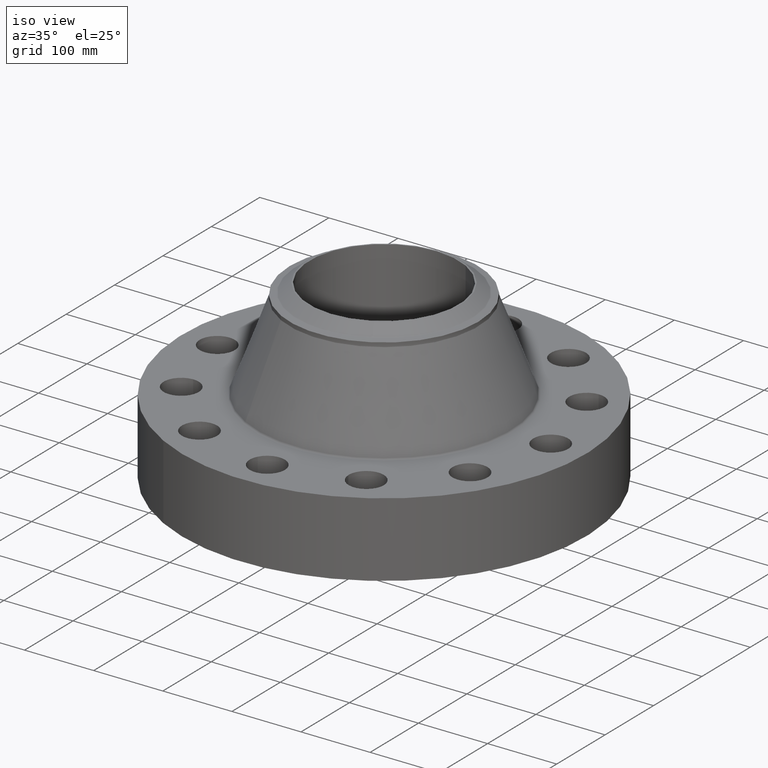
[diagram: clean part render]
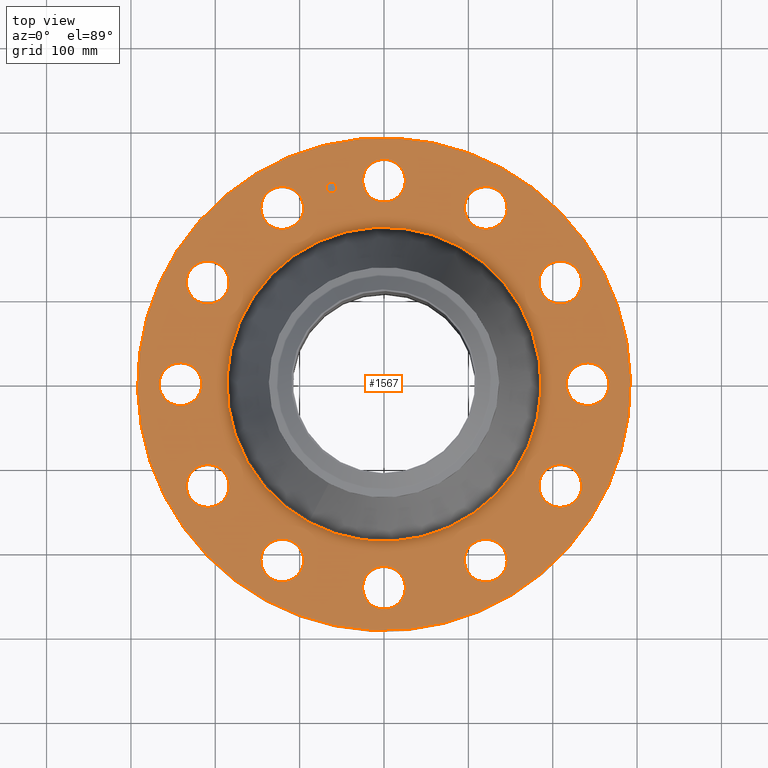
[diagram: tour spotlight — one face highlighted and labeled with its STEP entity id]
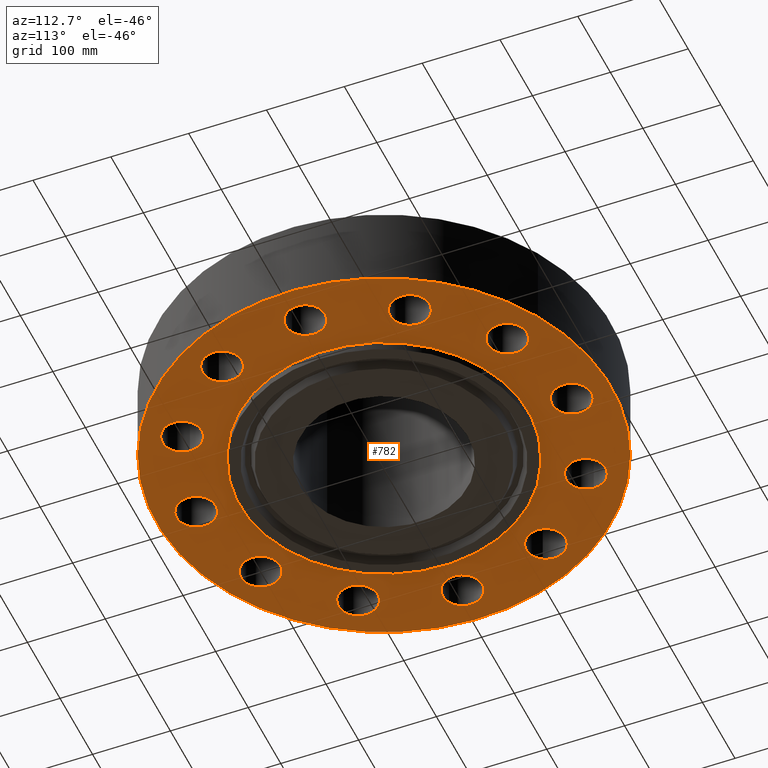
[diagram: tour spotlight — one face highlighted and labeled with its STEP entity id]
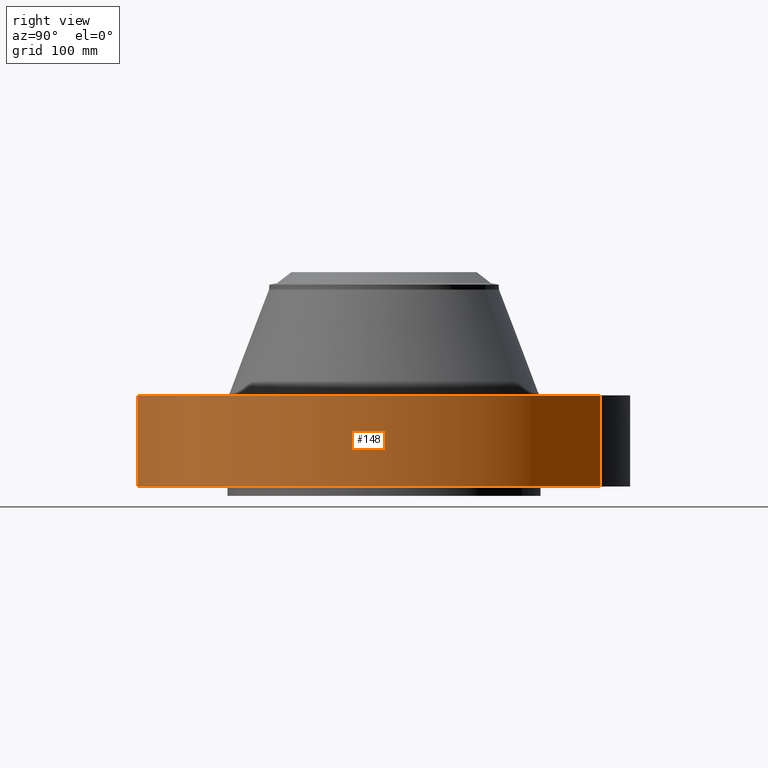
[diagram: tour spotlight — one face highlighted and labeled with its STEP entity id]
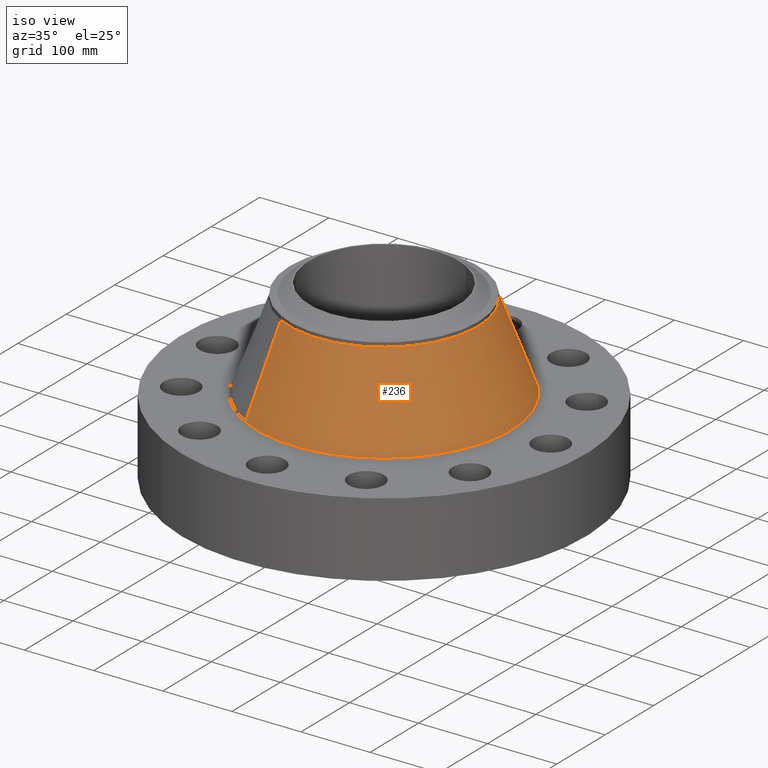
[diagram: tour spotlight — one face highlighted and labeled with its STEP entity id]
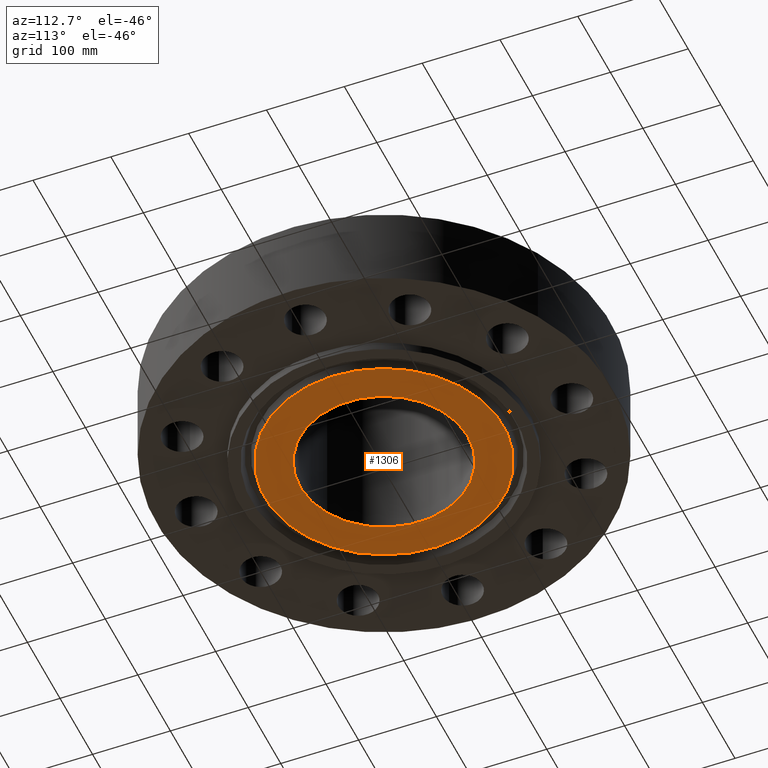
[diagram: tour spotlight — one face highlighted and labeled with its STEP entity id]
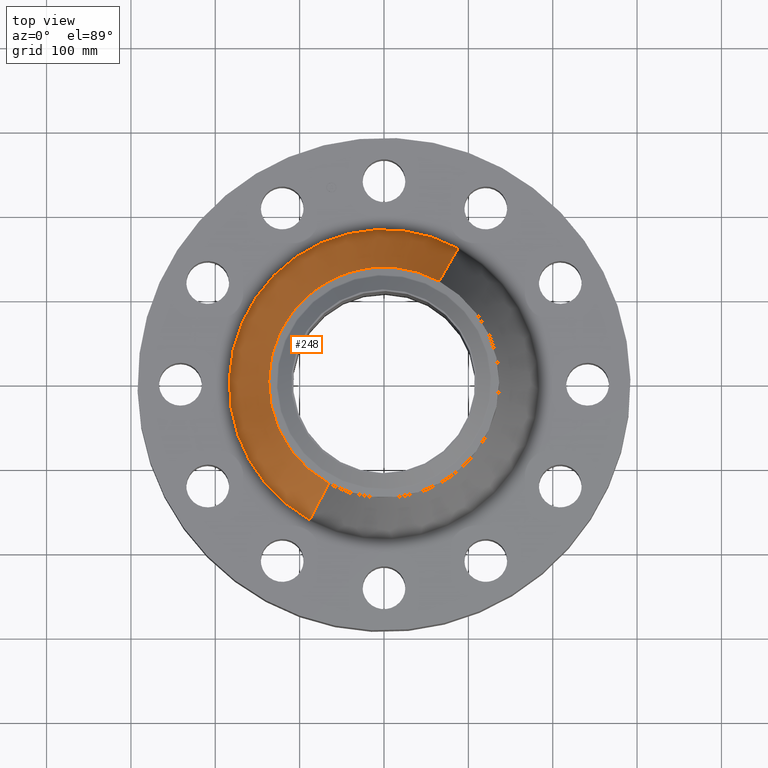
[diagram: tour spotlight — one face highlighted and labeled with its STEP entity id]
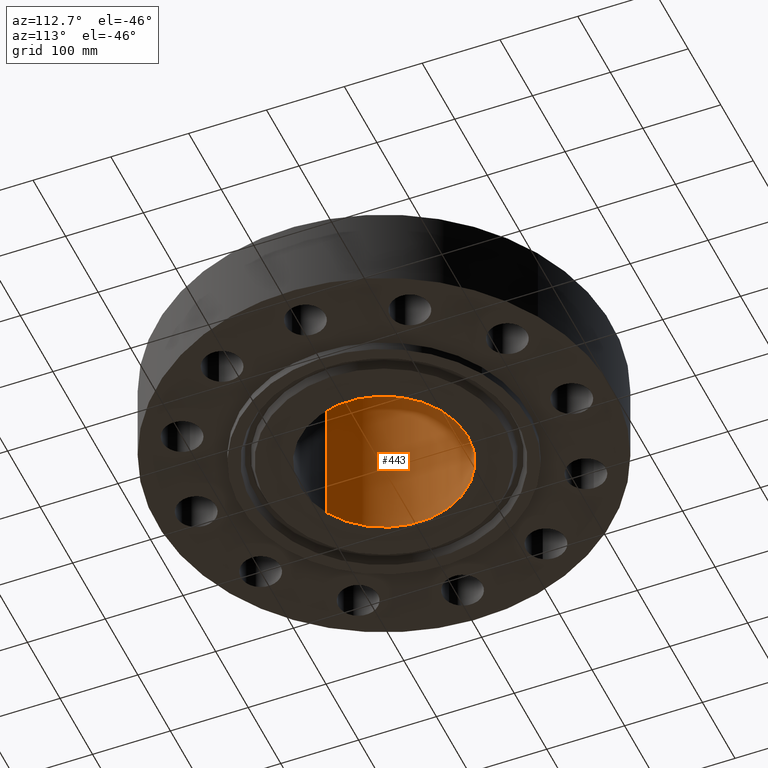
[diagram: tour spotlight — one face highlighted and labeled with its STEP entity id]
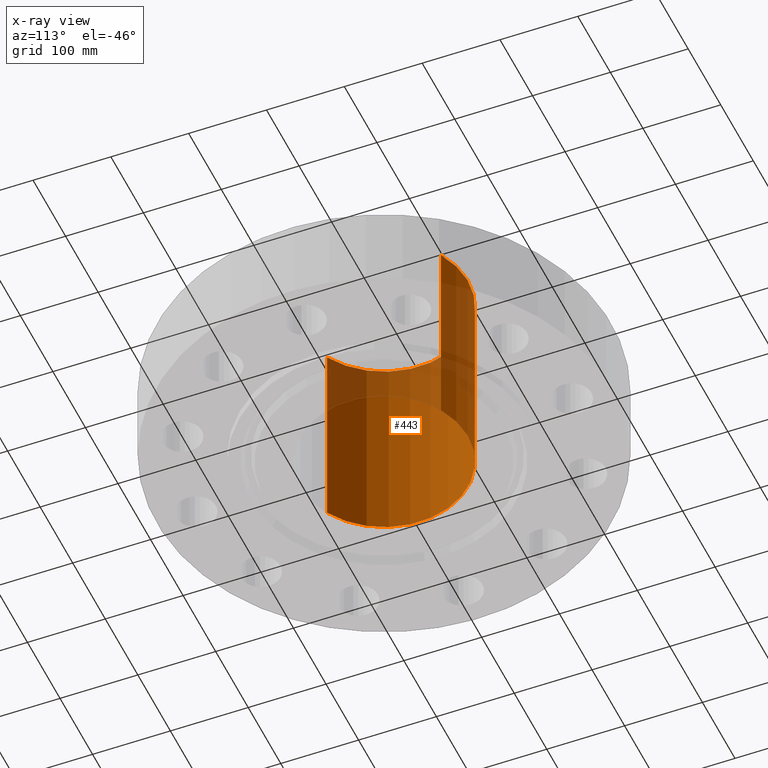
[diagram: x-ray of the same camera — body ghosted, this tour face saturated]
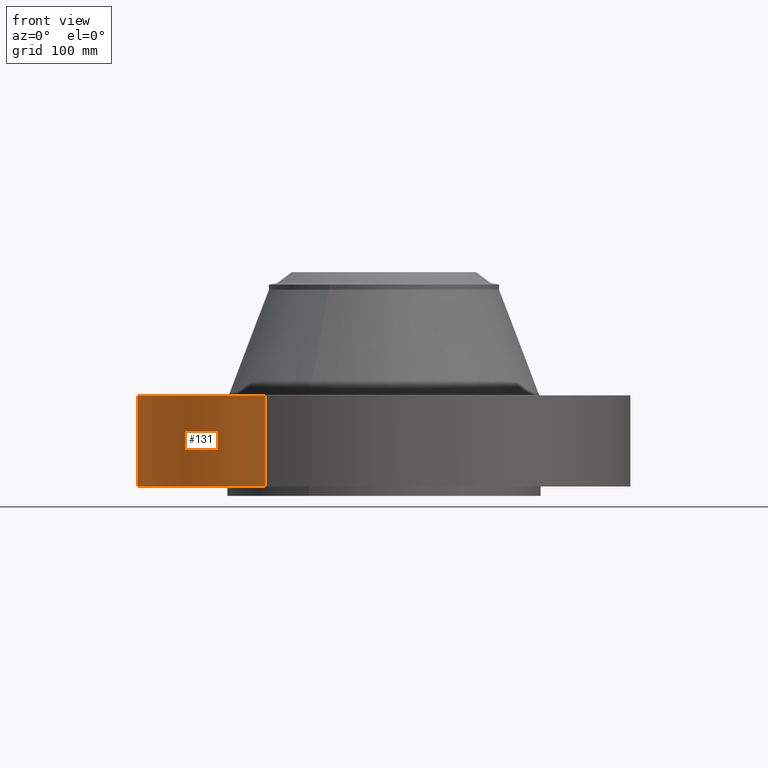
[diagram: tour spotlight — one face highlighted and labeled with its STEP entity id]
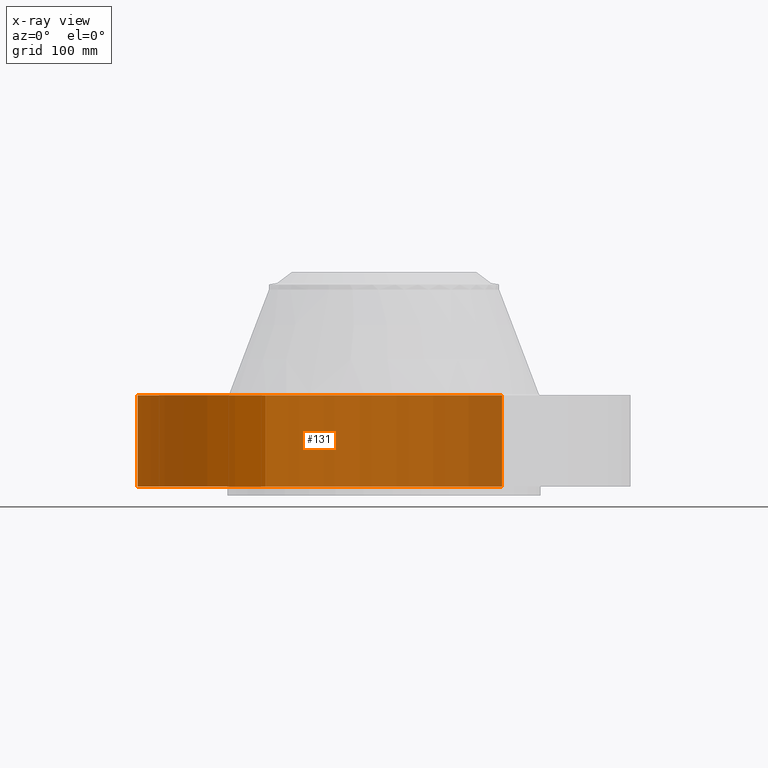
[diagram: x-ray of the same camera — body ghosted, this tour face saturated]
A machine part: a face-by-face anatomy tour. The part has 441 B-rep faces; the first image is the clean iso view, then the 8 largest visible faces are spotlighted one at a time (largest first), each with its STEP entity span.

Face 1 — top view, entity #1567. In plain terms, the highlighted planar face has unit normal (0, 0, -1).
Definition (entity closure, byte-faithful):
#65=AXIS2_PLACEMENT_3D('Circle Axis2P3D',#63,#64,$) ;
#82=AXIS2_PLACEMENT_3D('Circle Axis2P3D',#80,#81,$) ;
#115=AXIS2_PLACEMENT_3D('Circle Axis2P3D',#113,#114,$) ;
#139=AXIS2_PLACEMENT_3D('Circle Axis2P3D',#137,#138,$) ;
#156=AXIS2_PLACEMENT_3D('Circle Axis2P3D',#154,#155,$) ;
#191=AXIS2_PLACEMENT_3D('Circle Axis2P3D',#189,#190,$) ;
#804=AXIS2_PLACEMENT_3D('Circle Axis2P3D',#802,#803,$) ;
#816=AXIS2_PLACEMENT_3D('Circle Axis2P3D',#814,#815,$) ;
#847=AXIS2_PLACEMENT_3D('Circle Axis2P3D',#845,#846,$) ;
#859=AXIS2_PLACEMENT_3D('Circle Axis2P3D',#857,#858,$) ;
#890=AXIS2_PLACEMENT_3D('Circle Axis2P3D',#888,#889,$) ;
#902=AXIS2_PLACEMENT_3D('Circle Axis2P3D',#900,#901,$) ;
#933=AXIS2_PLACEMENT_3D('Circle Axis2P3D',#931,#932,$) ;
#945=AXIS2_PLACEMENT_3D('Circle Axis2P3D',#943,#944,$) ;
#976=AXIS2_PLACEMENT_3D('Circle Axis2P3D',#974,#975,$) ;
#988=AXIS2_PLACEMENT_3D('Circle Axis2P3D',#986,#987,$) ;
#1019=AXIS2_PLACEMENT_3D('Circle Axis2P3D',#1017,#1018,$) ;
#1031=AXIS2_PLACEMENT_3D('Circle Axis2P3D',#1029,#1030,$) ;
#1062=AXIS2_PLACEMENT_3D('Circle Axis2P3D',#1060,#1061,$) ;
#1074=AXIS2_PLACEMENT_3D('Circle Axis2P3D',#1072,#1073,$) ;
#1105=AXIS2_PLACEMENT_3D('Circle Axis2P3D',#1103,#1104,$) ;
#1117=AXIS2_PLACEMENT_3D('Circle Axis2P3D',#1115,#1116,$) ;
#1148=AXIS2_PLACEMENT_3D('Circle Axis2P3D',#1146,#1147,$) ;
#1160=AXIS2_PLACEMENT_3D('Circle Axis2P3D',#1158,#1159,$) ;
#1191=AXIS2_PLACEMENT_3D('Circle Axis2P3D',#1189,#1190,$) ;
#1203=AXIS2_PLACEMENT_3D('Circle Axis2P3D',#1201,#1202,$) ;
#1234=AXIS2_PLACEMENT_3D('Circle Axis2P3D',#1232,#1233,$) ;
#1246=AXIS2_PLACEMENT_3D('Circle Axis2P3D',#1244,#1245,$) ;
#1491=AXIS2_PLACEMENT_3D('Plane Axis2P3D',#1488,#1489,#1490) ;
#1551=AXIS2_PLACEMENT_3D('Circle Axis2P3D',#1549,#1550,$) ;
#1560=AXIS2_PLACEMENT_3D('Circle Axis2P3D',#1558,#1559,$) ;
#46=CARTESIAN_POINT('Vertex',(-0.877582561894,9.97942553864,4.25000000002)) ;
#60=CARTESIAN_POINT('Vertex',(0.877582561894,9.02057446143,4.25000000002)) ;
#63=CARTESIAN_POINT('Axis2P3D Location',(0.,9.50000000004,4.25000000002)) ;
#80=CARTESIAN_POINT('Axis2P3D Location',(0.,9.50000000004,4.25000000002)) ;
#110=CARTESIAN_POINT('Vertex',(-5.51339369397,-10.0921994618,4.25000000002)) ;
#113=CARTESIAN_POINT('Axis2P3D Location',(0.,0.,4.25000000002)) ;
#117=CARTESIAN_POINT('Vertex',(5.51339369397,10.0921994618,4.25000000002)) ;
#137=CARTESIAN_POINT('Axis2P3D Location',(0.,0.,4.25000000002)) ;
#154=CARTESIAN_POINT('Axis2P3D Location',(0.,0.,4.25000000002)) ;
#158=CARTESIAN_POINT('Vertex',(3.51551681475,6.43511036487,4.25000000002)) ;
#160=CARTESIAN_POINT('Vertex',(-3.51551681475,-6.43511036487,4.25000000002)) ;
#189=CARTESIAN_POINT('Axis2P3D Location',(0.,0.,4.25000000002)) ;
#792=CARTESIAN_POINT('Vertex',(-4.2297039768,-9.08122731259,4.25000000002)) ;
#799=CARTESIAN_POINT('Vertex',(-5.27029602323,-7.37325535938,4.25000000002)) ;
#802=CARTESIAN_POINT('Axis2P3D Location',(-4.75000000002,-8.22724133599,4.25000000002)) ;
#814=CARTESIAN_POINT('Axis2P3D Location',(-4.75000000002,-8.22724133599,4.25000000002)) ;
#835=CARTESIAN_POINT('Vertex',(8.20364475069,5.74972156184,4.25000000002)) ;
#842=CARTESIAN_POINT('Vertex',(8.25083792128,3.7502784382,4.25000000002)) ;
#845=CARTESIAN_POINT('Axis2P3D Location',(8.22724133599,4.75000000002,4.25000000002)) ;
#857=CARTESIAN_POINT('Axis2P3D Location',(8.22724133599,4.75000000002,4.25000000002)) ;
#878=CARTESIAN_POINT('Vertex',(-8.20364475069,-5.74972156184,4.25000000002)) ;
#885=CARTESIAN_POINT('Vertex',(-8.25083792128,-3.7502784382,4.25000000002)) ;
#888=CARTESIAN_POINT('Axis2P3D Location',(-8.22724133599,-4.75000000002,4.25000000002)) ;
#900=CARTESIAN_POINT('Axis2P3D Location',(-8.22724133599,-4.75000000002,4.25000000002)) ;
#921=CARTESIAN_POINT('Vertex',(9.97942553864,0.877582561894,4.25000000002)) ;
#928=CARTESIAN_POINT('Vertex',(9.02057446143,-0.877582561894,4.25000000002)) ;
#931=CARTESIAN_POINT('Axis2P3D Location',(9.50000000004,5.81707229597E-016,4.25000000002)) ;
#943=CARTESIAN_POINT('Axis2P3D Location',(9.50000000004,5.81707229597E-016,4.25000000002)) ;
#964=CARTESIAN_POINT('Vertex',(-9.97942553864,-0.877582561894,4.25000000002)) ;
#971=CARTESIAN_POINT('Vertex',(-9.02057446143,0.877582561894,4.25000000002)) ;
#974=CARTESIAN_POINT('Axis2P3D Location',(-9.50000000004,-1.74512168879E-015,4.25000000002)) ;
#986=CARTESIAN_POINT('Axis2P3D Location',(-9.50000000004,-1.74512168879E-015,4.25000000002)) ;
#1007=CARTESIAN_POINT('Vertex',(9.08122731259,-4.2297039768,4.25000000002)) ;
#1014=CARTESIAN_POINT('Vertex',(7.37325535938,-5.27029602323,4.25000000002)) ;
#1017=CARTESIAN_POINT('Axis2P3D Location',(8.22724133599,-4.75000000002,4.25000000002)) ;
#1029=CARTESIAN_POINT('Axis2P3D Location',(8.22724133599,-4.75000000002,4.25000000002)) ;
#1050=CARTESIAN_POINT('Vertex',(-9.08122731259,4.2297039768,4.25000000002)) ;
#1057=CARTESIAN_POINT('Vertex',(-7.37325535938,5.27029602323,4.25000000002)) ;
#1060=CARTESIAN_POINT('Axis2P3D Location',(-8.22724133599,4.75000000002,4.25000000002)) ;
#1072=CARTESIAN_POINT('Axis2P3D Location',(-8.22724133599,4.75000000002,4.25000000002)) ;
#1093=CARTESIAN_POINT('Vertex',(5.74972156184,-8.20364475069,4.25000000002)) ;
#1100=CARTESIAN_POINT('Vertex',(3.7502784382,-8.25083792128,4.25000000002)) ;
#1103=CARTESIAN_POINT('Axis2P3D Location',(4.75000000002,-8.22724133599,4.25000000002)) ;
#1115=CARTESIAN_POINT('Axis2P3D Location',(4.75000000002,-8.22724133599,4.25000000002)) ;
#1136=CARTESIAN_POINT('Vertex',(-5.74972156184,8.20364475069,4.25000000002)) ;
#1143=CARTESIAN_POINT('Vertex',(-3.7502784382,8.25083792128,4.25000000002)) ;
#1146=CARTESIAN_POINT('Axis2P3D Location',(-4.75000000002,8.22724133599,4.25000000002)) ;
#1158=CARTESIAN_POINT('Axis2P3D Location',(-4.75000000002,8.22724133599,4.25000000002)) ;
#1179=CARTESIAN_POINT('Vertex',(0.877582561894,-9.97942553864,4.25000000002)) ;
#1186=CARTESIAN_POINT('Vertex',(-0.877582561894,-9.02057446143,4.25000000002)) ;
#1189=CARTESIAN_POINT('Axis2P3D Location',(1.16341445919E-015,-9.50000000004,4.25000000002)) ;
#1201=CARTESIAN_POINT('Axis2P3D Location',(1.16341445919E-015,-9.50000000004,4.25000000002)) ;
#1222=CARTESIAN_POINT('Vertex',(4.2297039768,9.08122731259,4.25000000002)) ;
#1229=CARTESIAN_POINT('Vertex',(5.27029602323,7.37325535938,4.25000000002)) ;
#1232=CARTESIAN_POINT('Axis2P3D Location',(4.75000000002,8.22724133599,4.25000000002)) ;
#1244=CARTESIAN_POINT('Axis2P3D Location',(4.75000000002,8.22724133599,4.25000000002)) ;
#1488=CARTESIAN_POINT('Axis2P3D Location',(0.,11.5,4.25000000002)) ;
#1549=CARTESIAN_POINT('Axis2P3D Location',(-2.45878092848,9.17629534978,4.25000000002)) ;
#1553=CARTESIAN_POINT('Vertex',(-2.69784757049,9.11223763612,4.25000000002)) ;
#1555=CARTESIAN_POINT('Vertex',(-2.21971428648,9.24035306345,4.25000000002)) ;
#1558=CARTESIAN_POINT('Axis2P3D Location',(-2.45878092848,9.17629534978,4.25000000002)) ;
#64=DIRECTION('Axis2P3D Direction',(0.,-0.,-0.0393700787402)) ;
#81=DIRECTION('Axis2P3D Direction',(0.,-0.,-0.0393700787402)) ;
#114=DIRECTION('Axis2P3D Direction',(0.,0.,-0.0393700787402)) ;
#138=DIRECTION('Axis2P3D Direction',(0.,0.,-0.0393700787402)) ;
#155=DIRECTION('Axis2P3D Direction',(0.,0.,-0.0393700787402)) ;
#190=DIRECTION('Axis2P3D Direction',(0.,0.,-0.0393700787402)) ;
#803=DIRECTION('Axis2P3D Direction',(0.,0.,-0.0393700787402)) ;
#815=DIRECTION('Axis2P3D Direction',(0.,0.,-0.0393700787402)) ;
#846=DIRECTION('Axis2P3D Direction',(0.,-0.,-0.0393700787402)) ;
#858=DIRECTION('Axis2P3D Direction',(0.,-0.,-0.0393700787402)) ;
#889=DIRECTION('Axis2P3D Direction',(0.,0.,-0.0393700787402)) ;
#901=DIRECTION('Axis2P3D Direction',(0.,0.,-0.0393700787402)) ;
#932=DIRECTION('Axis2P3D Direction',(0.,-0.,-0.0393700787402)) ;
#944=DIRECTION('Axis2P3D Direction',(0.,-0.,-0.0393700787402)) ;
#975=DIRECTION('Axis2P3D Direction',(0.,0.,-0.0393700787402)) ;
#987=DIRECTION('Axis2P3D Direction',(0.,0.,-0.0393700787402)) ;
#1018=DIRECTION('Axis2P3D Direction',(-0.,0.,-0.0393700787402)) ;
#1030=DIRECTION('Axis2P3D Direction',(-0.,0.,-0.0393700787402)) ;
#1061=DIRECTION('Axis2P3D Direction',(0.,0.,-0.0393700787402)) ;
#1073=DIRECTION('Axis2P3D Direction',(0.,0.,-0.0393700787402)) ;
#1104=DIRECTION('Axis2P3D Direction',(-0.,0.,-0.0393700787402)) ;
#1116=DIRECTION('Axis2P3D Direction',(-0.,0.,-0.0393700787402)) ;
#1147=DIRECTION('Axis2P3D Direction',(0.,0.,-0.0393700787402)) ;
#1159=DIRECTION('Axis2P3D Direction',(0.,0.,-0.0393700787402)) ;
#1190=DIRECTION('Axis2P3D Direction',(-0.,0.,-0.0393700787402)) ;
#1202=DIRECTION('Axis2P3D Direction',(-0.,0.,-0.0393700787402)) ;
#1233=DIRECTION('Axis2P3D Direction',(0.,-0.,-0.0393700787402)) ;
#1245=DIRECTION('Axis2P3D Direction',(0.,-0.,-0.0393700787402)) ;
#1489=DIRECTION('Axis2P3D Direction',(0.,0.,-0.0393700787402)) ;
#1490=DIRECTION('Axis2P3D XDirection',(0.0393700787402,0.,0.)) ;
#1550=DIRECTION('Axis2P3D Direction',(0.,0.,-0.0393700787402)) ;
#1559=DIRECTION('Axis2P3D Direction',(0.,0.,-0.0393700787402)) ;
#1494=ORIENTED_EDGE('',*,*,#141,.F.) ;
#1495=ORIENTED_EDGE('',*,*,#119,.F.) ;
#1498=ORIENTED_EDGE('',*,*,#67,.T.) ;
#1499=ORIENTED_EDGE('',*,*,#84,.T.) ;
#1502=ORIENTED_EDGE('',*,*,#193,.T.) ;
#1503=ORIENTED_EDGE('',*,*,#162,.T.) ;
#1506=ORIENTED_EDGE('',*,*,#1248,.T.) ;
#1507=ORIENTED_EDGE('',*,*,#1236,.T.) ;
#1510=ORIENTED_EDGE('',*,*,#861,.T.) ;
#1511=ORIENTED_EDGE('',*,*,#849,.T.) ;
#1514=ORIENTED_EDGE('',*,*,#947,.T.) ;
#1515=ORIENTED_EDGE('',*,*,#935,.T.) ;
#1518=ORIENTED_EDGE('',*,*,#1033,.T.) ;
#1519=ORIENTED_EDGE('',*,*,#1021,.T.) ;
#1522=ORIENTED_EDGE('',*,*,#1119,.T.) ;
#1523=ORIENTED_EDGE('',*,*,#1107,.T.) ;
#1526=ORIENTED_EDGE('',*,*,#1205,.T.) ;
#1527=ORIENTED_EDGE('',*,*,#1193,.T.) ;
#1530=ORIENTED_EDGE('',*,*,#818,.T.) ;
#1531=ORIENTED_EDGE('',*,*,#806,.T.) ;
#1534=ORIENTED_EDGE('',*,*,#904,.T.) ;
#1535=ORIENTED_EDGE('',*,*,#892,.T.) ;
#1538=ORIENTED_EDGE('',*,*,#990,.T.) ;
#1539=ORIENTED_EDGE('',*,*,#978,.T.) ;
#1542=ORIENTED_EDGE('',*,*,#1076,.T.) ;
#1543=ORIENTED_EDGE('',*,*,#1064,.T.) ;
#1546=ORIENTED_EDGE('',*,*,#1162,.T.) ;
#1547=ORIENTED_EDGE('',*,*,#1150,.T.) ;
#1564=ORIENTED_EDGE('',*,*,#1557,.T.) ;
#1565=ORIENTED_EDGE('',*,*,#1562,.T.) ;
#1500=FACE_BOUND('',#1497,.T.) ;
#1504=FACE_BOUND('',#1501,.T.) ;
#1508=FACE_BOUND('',#1505,.T.) ;
#1512=FACE_BOUND('',#1509,.T.) ;
#1516=FACE_BOUND('',#1513,.T.) ;
#1520=FACE_BOUND('',#1517,.T.) ;
#1524=FACE_BOUND('',#1521,.T.) ;
#1528=FACE_BOUND('',#1525,.T.) ;
#1532=FACE_BOUND('',#1529,.T.) ;
#1536=FACE_BOUND('',#1533,.T.) ;
#1540=FACE_BOUND('',#1537,.T.) ;
#1544=FACE_BOUND('',#1541,.T.) ;
#1548=FACE_BOUND('',#1545,.T.) ;
#1566=FACE_BOUND('',#1563,.T.) ;
#1567=ADVANCED_FACE('PartBody',(#1496,#1500,#1504,#1508,#1512,#1516,#1520,#1524,#1528,#1532,#1536,#1540,#1544,#1548,#1566),#1492,.F.) ;
#66=CIRCLE('generated circle',#65,1.) ;
#83=CIRCLE('generated circle',#82,1.) ;
#116=CIRCLE('generated circle',#115,11.5) ;
#140=CIRCLE('generated circle',#139,11.5) ;
#157=CIRCLE('generated circle',#156,7.33276918243) ;
#192=CIRCLE('generated circle',#191,7.33276918243) ;
#805=CIRCLE('generated circle',#804,1.) ;
#817=CIRCLE('generated circle',#816,1.) ;
#848=CIRCLE('generated circle',#847,1.) ;
#860=CIRCLE('generated circle',#859,1.) ;
#891=CIRCLE('generated circle',#890,1.) ;
#903=CIRCLE('generated circle',#902,1.) ;
#934=CIRCLE('generated circle',#933,1.) ;
#946=CIRCLE('generated circle',#945,1.) ;
#977=CIRCLE('generated circle',#976,1.) ;
#989=CIRCLE('generated circle',#988,1.) ;
#1020=CIRCLE('generated circle',#1019,1.) ;
#1032=CIRCLE('generated circle',#1031,1.) ;
#1063=CIRCLE('generated circle',#1062,1.) ;
#1075=CIRCLE('generated circle',#1074,1.) ;
#1106=CIRCLE('generated circle',#1105,1.) ;
#1118=CIRCLE('generated circle',#1117,1.) ;
#1149=CIRCLE('generated circle',#1148,1.) ;
#1161=CIRCLE('generated circle',#1160,1.) ;
#1192=CIRCLE('generated circle',#1191,1.) ;
#1204=CIRCLE('generated circle',#1203,1.) ;
#1235=CIRCLE('generated circle',#1234,1.) ;
#1247=CIRCLE('generated circle',#1246,1.) ;
#1552=CIRCLE('generated circle',#1551,0.247500000001) ;
#1561=CIRCLE('generated circle',#1560,0.247500000001) ;
#67=EDGE_CURVE('',#47,#61,#66,.T.) ;
#84=EDGE_CURVE('',#61,#47,#83,.T.) ;
#119=EDGE_CURVE('',#111,#118,#116,.T.) ;
#141=EDGE_CURVE('',#118,#111,#140,.T.) ;
#162=EDGE_CURVE('',#159,#161,#157,.T.) ;
#193=EDGE_CURVE('',#161,#159,#192,.T.) ;
#806=EDGE_CURVE('',#793,#800,#805,.T.) ;
#818=EDGE_CURVE('',#800,#793,#817,.T.) ;
#849=EDGE_CURVE('',#836,#843,#848,.T.) ;
#861=EDGE_CURVE('',#843,#836,#860,.T.) ;
#892=EDGE_CURVE('',#879,#886,#891,.T.) ;
#904=EDGE_CURVE('',#886,#879,#903,.T.) ;
#935=EDGE_CURVE('',#922,#929,#934,.T.) ;
#947=EDGE_CURVE('',#929,#922,#946,.T.) ;
#978=EDGE_CURVE('',#965,#972,#977,.T.) ;
#990=EDGE_CURVE('',#972,#965,#989,.T.) ;
#1021=EDGE_CURVE('',#1008,#1015,#1020,.T.) ;
#1033=EDGE_CURVE('',#1015,#1008,#1032,.T.) ;
#1064=EDGE_CURVE('',#1051,#1058,#1063,.T.) ;
#1076=EDGE_CURVE('',#1058,#1051,#1075,.T.) ;
#1107=EDGE_CURVE('',#1094,#1101,#1106,.T.) ;
#1119=EDGE_CURVE('',#1101,#1094,#1118,.T.) ;
#1150=EDGE_CURVE('',#1137,#1144,#1149,.T.) ;
#1162=EDGE_CURVE('',#1144,#1137,#1161,.T.) ;
#1193=EDGE_CURVE('',#1180,#1187,#1192,.T.) ;
#1205=EDGE_CURVE('',#1187,#1180,#1204,.T.) ;
#1236=EDGE_CURVE('',#1223,#1230,#1235,.T.) ;
#1248=EDGE_CURVE('',#1230,#1223,#1247,.T.) ;
#1557=EDGE_CURVE('',#1554,#1556,#1552,.T.) ;
#1562=EDGE_CURVE('',#1556,#1554,#1561,.T.) ;
#1493=EDGE_LOOP('',(#1494,#1495)) ;
#1497=EDGE_LOOP('',(#1498,#1499)) ;
#1501=EDGE_LOOP('',(#1502,#1503)) ;
#1505=EDGE_LOOP('',(#1506,#1507)) ;
#1509=EDGE_LOOP('',(#1510,#1511)) ;
#1513=EDGE_LOOP('',(#1514,#1515)) ;
#1517=EDGE_LOOP('',(#1518,#1519)) ;
#1521=EDGE_LOOP('',(#1522,#1523)) ;
#1525=EDGE_LOOP('',(#1526,#1527)) ;
#1529=EDGE_LOOP('',(#1530,#1531)) ;
#1533=EDGE_LOOP('',(#1534,#1535)) ;
#1537=EDGE_LOOP('',(#1538,#1539)) ;
#1541=EDGE_LOOP('',(#1542,#1543)) ;
#1545=EDGE_LOOP('',(#1546,#1547)) ;
#1563=EDGE_LOOP('',(#1564,#1565)) ;
#1496=FACE_OUTER_BOUND('',#1493,.T.) ;
#1492=PLANE('',#1491) ;
#47=VERTEX_POINT('',#46) ;
#61=VERTEX_POINT('',#60) ;
#111=VERTEX_POINT('',#110) ;
#118=VERTEX_POINT('',#117) ;
#159=VERTEX_POINT('',#158) ;
#161=VERTEX_POINT('',#160) ;
#793=VERTEX_POINT('',#792) ;
#800=VERTEX_POINT('',#799) ;
#836=VERTEX_POINT('',#835) ;
#843=VERTEX_POINT('',#842) ;
#879=VERTEX_POINT('',#878) ;
#886=VERTEX_POINT('',#885) ;
#922=VERTEX_POINT('',#921) ;
#929=VERTEX_POINT('',#928) ;
#965=VERTEX_POINT('',#964) ;
#972=VERTEX_POINT('',#971) ;
#1008=VERTEX_POINT('',#1007) ;
#1015=VERTEX_POINT('',#1014) ;
#1051=VERTEX_POINT('',#1050) ;
#1058=VERTEX_POINT('',#1057) ;
#1094=VERTEX_POINT('',#1093) ;
#1101=VERTEX_POINT('',#1100) ;
#1137=VERTEX_POINT('',#1136) ;
#1144=VERTEX_POINT('',#1143) ;
#1180=VERTEX_POINT('',#1179) ;
#1187=VERTEX_POINT('',#1186) ;
#1223=VERTEX_POINT('',#1222) ;
#1230=VERTEX_POINT('',#1229) ;
#1554=VERTEX_POINT('',#1553) ;
#1556=VERTEX_POINT('',#1555) ;

Face 2 — auxiliary view, entity #782. In plain terms, the highlighted planar face has unit normal (0, 0, -1).
Definition (entity closure, byte-faithful):
#51=AXIS2_PLACEMENT_3D('Circle Axis2P3D',#49,#50,$) ;
#77=AXIS2_PLACEMENT_3D('Circle Axis2P3D',#75,#76,$) ;
#99=AXIS2_PLACEMENT_3D('Circle Axis2P3D',#97,#98,$) ;
#134=AXIS2_PLACEMENT_3D('Circle Axis2P3D',#132,#133,$) ;
#533=AXIS2_PLACEMENT_3D('Circle Axis2P3D',#531,#532,$) ;
#557=AXIS2_PLACEMENT_3D('Circle Axis2P3D',#555,#556,$) ;
#570=AXIS2_PLACEMENT_3D('Plane Axis2P3D',#567,#568,#569) ;
#586=AXIS2_PLACEMENT_3D('Circle Axis2P3D',#584,#585,$) ;
#595=AXIS2_PLACEMENT_3D('Circle Axis2P3D',#593,#594,$) ;
#604=AXIS2_PLACEMENT_3D('Circle Axis2P3D',#602,#603,$) ;
#613=AXIS2_PLACEMENT_3D('Circle Axis2P3D',#611,#612,$) ;
#622=AXIS2_PLACEMENT_3D('Circle Axis2P3D',#620,#621,$) ;
#631=AXIS2_PLACEMENT_3D('Circle Axis2P3D',#629,#630,$) ;
#640=AXIS2_PLACEMENT_3D('Circle Axis2P3D',#638,#639,$) ;
#649=AXIS2_PLACEMENT_3D('Circle Axis2P3D',#647,#648,$) ;
#658=AXIS2_PLACEMENT_3D('Circle Axis2P3D',#656,#657,$) ;
#667=AXIS2_PLACEMENT_3D('Circle Axis2P3D',#665,#666,$) ;
#676=AXIS2_PLACEMENT_3D('Circle Axis2P3D',#674,#675,$) ;
#685=AXIS2_PLACEMENT_3D('Circle Axis2P3D',#683,#684,$) ;
#694=AXIS2_PLACEMENT_3D('Circle Axis2P3D',#692,#693,$) ;
#703=AXIS2_PLACEMENT_3D('Circle Axis2P3D',#701,#702,$) ;
#712=AXIS2_PLACEMENT_3D('Circle Axis2P3D',#710,#711,$) ;
#721=AXIS2_PLACEMENT_3D('Circle Axis2P3D',#719,#720,$) ;
#730=AXIS2_PLACEMENT_3D('Circle Axis2P3D',#728,#729,$) ;
#739=AXIS2_PLACEMENT_3D('Circle Axis2P3D',#737,#738,$) ;
#748=AXIS2_PLACEMENT_3D('Circle Axis2P3D',#746,#747,$) ;
#757=AXIS2_PLACEMENT_3D('Circle Axis2P3D',#755,#756,$) ;
#766=AXIS2_PLACEMENT_3D('Circle Axis2P3D',#764,#765,$) ;
#775=AXIS2_PLACEMENT_3D('Circle Axis2P3D',#773,#774,$) ;
#44=CARTESIAN_POINT('Vertex',(-0.877582561894,9.97942553864,0.)) ;
#49=CARTESIAN_POINT('Axis2P3D Location',(0.,9.50000000004,0.)) ;
#53=CARTESIAN_POINT('Vertex',(0.877582561894,9.02057446143,0.)) ;
#75=CARTESIAN_POINT('Axis2P3D Location',(0.,9.50000000004,0.)) ;
#97=CARTESIAN_POINT('Axis2P3D Location',(0.,0.,1.1189649382E-015)) ;
#101=CARTESIAN_POINT('Vertex',(-5.51339369397,-10.0921994618,1.1189649382E-015)) ;
#103=CARTESIAN_POINT('Vertex',(5.51339369397,10.0921994618,1.1189649382E-015)) ;
#132=CARTESIAN_POINT('Axis2P3D Location',(0.,0.,1.1189649382E-015)) ;
#528=CARTESIAN_POINT('Vertex',(-3.50579925106,-6.41732248385,5.59482469102E-016)) ;
#531=CARTESIAN_POINT('Axis2P3D Location',(0.,0.,5.59482469102E-016)) ;
#535=CARTESIAN_POINT('Vertex',(3.50579925106,6.41732248385,5.59482469102E-016)) ;
#555=CARTESIAN_POINT('Axis2P3D Location',(0.,0.,5.59482469102E-016)) ;
#567=CARTESIAN_POINT('Axis2P3D Location',(0.,7.31250000003,0.)) ;
#584=CARTESIAN_POINT('Axis2P3D Location',(4.75000000002,8.22724133599,0.)) ;
#588=CARTESIAN_POINT('Vertex',(4.2297039768,9.08122731259,0.)) ;
#590=CARTESIAN_POINT('Vertex',(5.27029602323,7.37325535938,0.)) ;
#593=CARTESIAN_POINT('Axis2P3D Location',(4.75000000002,8.22724133599,0.)) ;
#602=CARTESIAN_POINT('Axis2P3D Location',(8.22724133599,4.75000000002,0.)) ;
#606=CARTESIAN_POINT('Vertex',(8.20364475069,5.74972156184,0.)) ;
#608=CARTESIAN_POINT('Vertex',(8.25083792128,3.7502784382,0.)) ;
#611=CARTESIAN_POINT('Axis2P3D Location',(8.22724133599,4.75000000002,0.)) ;
#620=CARTESIAN_POINT('Axis2P3D Location',(9.50000000004,1.1189649382E-015,0.)) ;
#624=CARTESIAN_POINT('Vertex',(9.97942553864,0.877582561894,0.)) ;
#626=CARTESIAN_POINT('Vertex',(9.02057446143,-0.877582561894,0.)) ;
#629=CARTESIAN_POINT('Axis2P3D Location',(9.50000000004,0.,0.)) ;
#638=CARTESIAN_POINT('Axis2P3D Location',(8.22724133599,-4.75000000002,0.)) ;
#642=CARTESIAN_POINT('Vertex',(9.08122731259,-4.2297039768,0.)) ;
#644=CARTESIAN_POINT('Vertex',(7.37325535938,-5.27029602323,-3.35689481461E-015)) ;
#647=CARTESIAN_POINT('Axis2P3D Location',(8.22724133599,-4.75000000002,0.)) ;
#656=CARTESIAN_POINT('Axis2P3D Location',(4.75000000002,-8.22724133599,0.)) ;
#660=CARTESIAN_POINT('Vertex',(5.74972156184,-8.20364475069,0.)) ;
#662=CARTESIAN_POINT('Vertex',(3.7502784382,-8.25083792128,0.)) ;
#665=CARTESIAN_POINT('Axis2P3D Location',(4.75000000002,-8.22724133599,0.)) ;
#674=CARTESIAN_POINT('Axis2P3D Location',(1.22386790116E-015,-9.50000000004,0.)) ;
#678=CARTESIAN_POINT('Vertex',(0.877582561894,-9.97942553864,0.)) ;
#680=CARTESIAN_POINT('Vertex',(-0.877582561894,-9.02057446143,0.)) ;
#683=CARTESIAN_POINT('Axis2P3D Location',(1.15393259252E-015,-9.50000000004,0.)) ;
#692=CARTESIAN_POINT('Axis2P3D Location',(-4.75000000002,-8.22724133599,0.)) ;
#696=CARTESIAN_POINT('Vertex',(-4.2297039768,-9.08122731259,0.)) ;
#698=CARTESIAN_POINT('Vertex',(-5.27029602323,-7.37325535938,0.)) ;
#701=CARTESIAN_POINT('Axis2P3D Location',(-4.75000000002,-8.22724133599,0.)) ;
#710=CARTESIAN_POINT('Axis2P3D Location',(-8.22724133599,-4.75000000002,0.)) ;
#714=CARTESIAN_POINT('Vertex',(-8.20364475069,-5.74972156184,0.)) ;
#716=CARTESIAN_POINT('Vertex',(-8.25083792128,-3.7502784382,0.)) ;
#719=CARTESIAN_POINT('Axis2P3D Location',(-8.22724133599,-4.75000000002,0.)) ;
#728=CARTESIAN_POINT('Axis2P3D Location',(-9.50000000004,-2.23792987641E-015,0.)) ;
#732=CARTESIAN_POINT('Vertex',(-9.97942553864,-0.877582561894,0.)) ;
#734=CARTESIAN_POINT('Vertex',(-9.02057446143,0.877582561894,0.)) ;
#737=CARTESIAN_POINT('Axis2P3D Location',(-9.50000000004,-1.1189649382E-015,0.)) ;
#746=CARTESIAN_POINT('Axis2P3D Location',(-8.22724133599,4.75000000002,0.)) ;
#750=CARTESIAN_POINT('Vertex',(-9.08122731259,4.2297039768,0.)) ;
#752=CARTESIAN_POINT('Vertex',(-7.37325535938,5.27029602323,0.)) ;
#755=CARTESIAN_POINT('Axis2P3D Location',(-8.22724133599,4.75000000002,0.)) ;
#764=CARTESIAN_POINT('Axis2P3D Location',(-4.75000000002,8.22724133599,0.)) ;
#768=CARTESIAN_POINT('Vertex',(-5.74972156184,8.20364475069,0.)) ;
#770=CARTESIAN_POINT('Vertex',(-3.7502784382,8.25083792128,0.)) ;
#773=CARTESIAN_POINT('Axis2P3D Location',(-4.75000000002,8.22724133599,0.)) ;
#50=DIRECTION('Axis2P3D Direction',(0.,-0.,-0.0393700787402)) ;
#76=DIRECTION('Axis2P3D Direction',(0.,-0.,-0.0393700787402)) ;
#98=DIRECTION('Axis2P3D Direction',(0.,0.,-0.0393700787402)) ;
#133=DIRECTION('Axis2P3D Direction',(0.,0.,-0.0393700787402)) ;
#532=DIRECTION('Axis2P3D Direction',(0.,0.,-0.0393700787402)) ;
#556=DIRECTION('Axis2P3D Direction',(0.,0.,-0.0393700787402)) ;
#568=DIRECTION('Axis2P3D Direction',(0.,0.,-0.0393700787402)) ;
#569=DIRECTION('Axis2P3D XDirection',(0.0393700787402,0.,0.)) ;
#585=DIRECTION('Axis2P3D Direction',(0.,0.,-0.0393700787402)) ;
#594=DIRECTION('Axis2P3D Direction',(0.,0.,-0.0393700787402)) ;
#603=DIRECTION('Axis2P3D Direction',(0.,0.,-0.0393700787402)) ;
#612=DIRECTION('Axis2P3D Direction',(0.,0.,-0.0393700787402)) ;
#621=DIRECTION('Axis2P3D Direction',(0.,0.,-0.0393700787402)) ;
#630=DIRECTION('Axis2P3D Direction',(0.,0.,-0.0393700787402)) ;
#639=DIRECTION('Axis2P3D Direction',(0.,0.,-0.0393700787402)) ;
#648=DIRECTION('Axis2P3D Direction',(0.,0.,-0.0393700787402)) ;
#657=DIRECTION('Axis2P3D Direction',(0.,0.,-0.0393700787402)) ;
#666=DIRECTION('Axis2P3D Direction',(0.,0.,-0.0393700787402)) ;
#675=DIRECTION('Axis2P3D Direction',(0.,0.,-0.0393700787402)) ;
#684=DIRECTION('Axis2P3D Direction',(0.,0.,-0.0393700787402)) ;
#693=DIRECTION('Axis2P3D Direction',(0.,0.,-0.0393700787402)) ;
#702=DIRECTION('Axis2P3D Direction',(0.,0.,-0.0393700787402)) ;
#711=DIRECTION('Axis2P3D Direction',(0.,0.,-0.0393700787402)) ;
#720=DIRECTION('Axis2P3D Direction',(0.,0.,-0.0393700787402)) ;
#729=DIRECTION('Axis2P3D Direction',(0.,0.,-0.0393700787402)) ;
#738=DIRECTION('Axis2P3D Direction',(0.,0.,-0.0393700787402)) ;
#747=DIRECTION('Axis2P3D Direction',(0.,0.,-0.0393700787402)) ;
#756=DIRECTION('Axis2P3D Direction',(0.,0.,-0.0393700787402)) ;
#765=DIRECTION('Axis2P3D Direction',(0.,0.,-0.0393700787402)) ;
#774=DIRECTION('Axis2P3D Direction',(0.,0.,-0.0393700787402)) ;
#573=ORIENTED_EDGE('',*,*,#105,.T.) ;
#574=ORIENTED_EDGE('',*,*,#136,.T.) ;
#577=ORIENTED_EDGE('',*,*,#79,.F.) ;
#578=ORIENTED_EDGE('',*,*,#55,.F.) ;
#581=ORIENTED_EDGE('',*,*,#559,.F.) ;
#582=ORIENTED_EDGE('',*,*,#537,.F.) ;
#599=ORIENTED_EDGE('',*,*,#592,.F.) ;
#600=ORIENTED_EDGE('',*,*,#597,.F.) ;
#617=ORIENTED_EDGE('',*,*,#610,.F.) ;
#618=ORIENTED_EDGE('',*,*,#615,.F.) ;
#635=ORIENTED_EDGE('',*,*,#628,.F.) ;
#636=ORIENTED_EDGE('',*,*,#633,.F.) ;
#653=ORIENTED_EDGE('',*,*,#646,.F.) ;
#654=ORIENTED_EDGE('',*,*,#651,.F.) ;
#671=ORIENTED_EDGE('',*,*,#664,.F.) ;
#672=ORIENTED_EDGE('',*,*,#669,.F.) ;
#689=ORIENTED_EDGE('',*,*,#682,.F.) ;
#690=ORIENTED_EDGE('',*,*,#687,.F.) ;
#707=ORIENTED_EDGE('',*,*,#700,.F.) ;
#708=ORIENTED_EDGE('',*,*,#705,.F.) ;
#725=ORIENTED_EDGE('',*,*,#718,.F.) ;
#726=ORIENTED_EDGE('',*,*,#723,.F.) ;
#743=ORIENTED_EDGE('',*,*,#736,.F.) ;
#744=ORIENTED_EDGE('',*,*,#741,.F.) ;
#761=ORIENTED_EDGE('',*,*,#754,.F.) ;
#762=ORIENTED_EDGE('',*,*,#759,.F.) ;
#779=ORIENTED_EDGE('',*,*,#772,.F.) ;
#780=ORIENTED_EDGE('',*,*,#777,.F.) ;
#579=FACE_BOUND('',#576,.T.) ;
#583=FACE_BOUND('',#580,.T.) ;
#601=FACE_BOUND('',#598,.T.) ;
#619=FACE_BOUND('',#616,.T.) ;
#637=FACE_BOUND('',#634,.T.) ;
#655=FACE_BOUND('',#652,.T.) ;
#673=FACE_BOUND('',#670,.T.) ;
#691=FACE_BOUND('',#688,.T.) ;
#709=FACE_BOUND('',#706,.T.) ;
#727=FACE_BOUND('',#724,.T.) ;
#745=FACE_BOUND('',#742,.T.) ;
#763=FACE_BOUND('',#760,.T.) ;
#781=FACE_BOUND('',#778,.T.) ;
#782=ADVANCED_FACE('PartBody',(#575,#579,#583,#601,#619,#637,#655,#673,#691,#709,#727,#745,#763,#781),#571,.T.) ;
#52=CIRCLE('generated circle',#51,1.) ;
#78=CIRCLE('generated circle',#77,1.) ;
#100=CIRCLE('generated circle',#99,11.5) ;
#135=CIRCLE('generated circle',#134,11.5) ;
#534=CIRCLE('generated circle',#533,7.31250000003) ;
#558=CIRCLE('generated circle',#557,7.31250000003) ;
#587=CIRCLE('generated circle',#586,1.) ;
#596=CIRCLE('generated circle',#595,1.) ;
#605=CIRCLE('generated circle',#604,1.) ;
#614=CIRCLE('generated circle',#613,1.) ;
#623=CIRCLE('generated circle',#622,1.) ;
#632=CIRCLE('generated circle',#631,1.) ;
#641=CIRCLE('generated circle',#640,1.) ;
#650=CIRCLE('generated circle',#649,1.) ;
#659=CIRCLE('generated circle',#658,1.) ;
#668=CIRCLE('generated circle',#667,1.) ;
#677=CIRCLE('generated circle',#676,1.) ;
#686=CIRCLE('generated circle',#685,1.) ;
#695=CIRCLE('generated circle',#694,1.) ;
#704=CIRCLE('generated circle',#703,1.) ;
#713=CIRCLE('generated circle',#712,1.) ;
#722=CIRCLE('generated circle',#721,1.) ;
#731=CIRCLE('generated circle',#730,1.) ;
#740=CIRCLE('generated circle',#739,1.) ;
#749=CIRCLE('generated circle',#748,1.) ;
#758=CIRCLE('generated circle',#757,1.) ;
#767=CIRCLE('generated circle',#766,1.) ;
#776=CIRCLE('generated circle',#775,1.) ;
#55=EDGE_CURVE('',#45,#54,#52,.T.) ;
#79=EDGE_CURVE('',#54,#45,#78,.T.) ;
#105=EDGE_CURVE('',#102,#104,#100,.T.) ;
#136=EDGE_CURVE('',#104,#102,#135,.T.) ;
#537=EDGE_CURVE('',#529,#536,#534,.T.) ;
#559=EDGE_CURVE('',#536,#529,#558,.T.) ;
#592=EDGE_CURVE('',#589,#591,#587,.T.) ;
#597=EDGE_CURVE('',#591,#589,#596,.T.) ;
#610=EDGE_CURVE('',#607,#609,#605,.T.) ;
#615=EDGE_CURVE('',#609,#607,#614,.T.) ;
#628=EDGE_CURVE('',#625,#627,#623,.T.) ;
#633=EDGE_CURVE('',#627,#625,#632,.T.) ;
#646=EDGE_CURVE('',#643,#645,#641,.T.) ;
#651=EDGE_CURVE('',#645,#643,#650,.T.) ;
#664=EDGE_CURVE('',#661,#663,#659,.T.) ;
#669=EDGE_CURVE('',#663,#661,#668,.T.) ;
#682=EDGE_CURVE('',#679,#681,#677,.T.) ;
#687=EDGE_CURVE('',#681,#679,#686,.T.) ;
#700=EDGE_CURVE('',#697,#699,#695,.T.) ;
#705=EDGE_CURVE('',#699,#697,#704,.T.) ;
#718=EDGE_CURVE('',#715,#717,#713,.T.) ;
#723=EDGE_CURVE('',#717,#715,#722,.T.) ;
#736=EDGE_CURVE('',#733,#735,#731,.T.) ;
#741=EDGE_CURVE('',#735,#733,#740,.T.) ;
#754=EDGE_CURVE('',#751,#753,#749,.T.) ;
#759=EDGE_CURVE('',#753,#751,#758,.T.) ;
#772=EDGE_CURVE('',#769,#771,#767,.T.) ;
#777=EDGE_CURVE('',#771,#769,#776,.T.) ;
#572=EDGE_LOOP('',(#573,#574)) ;
#576=EDGE_LOOP('',(#577,#578)) ;
#580=EDGE_LOOP('',(#581,#582)) ;
#598=EDGE_LOOP('',(#599,#600)) ;
#616=EDGE_LOOP('',(#617,#618)) ;
#634=EDGE_LOOP('',(#635,#636)) ;
#652=EDGE_LOOP('',(#653,#654)) ;
#670=EDGE_LOOP('',(#671,#672)) ;
#688=EDGE_LOOP('',(#689,#690)) ;
#706=EDGE_LOOP('',(#707,#708)) ;
#724=EDGE_LOOP('',(#725,#726)) ;
#742=EDGE_LOOP('',(#743,#744)) ;
#760=EDGE_LOOP('',(#761,#762)) ;
#778=EDGE_LOOP('',(#779,#780)) ;
#575=FACE_OUTER_BOUND('',#572,.T.) ;
#571=PLANE('',#570) ;
#45=VERTEX_POINT('',#44) ;
#54=VERTEX_POINT('',#53) ;
#102=VERTEX_POINT('',#101) ;
#104=VERTEX_POINT('',#103) ;
#529=VERTEX_POINT('',#528) ;
#536=VERTEX_POINT('',#535) ;
#589=VERTEX_POINT('',#588) ;
#591=VERTEX_POINT('',#590) ;
#607=VERTEX_POINT('',#606) ;
#609=VERTEX_POINT('',#608) ;
#625=VERTEX_POINT('',#624) ;
#627=VERTEX_POINT('',#626) ;
#643=VERTEX_POINT('',#642) ;
#645=VERTEX_POINT('',#644) ;
#661=VERTEX_POINT('',#660) ;
#663=VERTEX_POINT('',#662) ;
#679=VERTEX_POINT('',#678) ;
#681=VERTEX_POINT('',#680) ;
#697=VERTEX_POINT('',#696) ;
#699=VERTEX_POINT('',#698) ;
#715=VERTEX_POINT('',#714) ;
#717=VERTEX_POINT('',#716) ;
#733=VERTEX_POINT('',#732) ;
#735=VERTEX_POINT('',#734) ;
#751=VERTEX_POINT('',#750) ;
#753=VERTEX_POINT('',#752) ;
#769=VERTEX_POINT('',#768) ;
#771=VERTEX_POINT('',#770) ;

Face 3 — right view, entity #148. In plain terms, the highlighted cylindrical surface (partial cylindrical patch) has radius 292.1 mm, axis along (0, 0, -1).
Definition (entity closure, byte-faithful):
#95=AXIS2_PLACEMENT_3D('Cylinder Axis2P3D',#92,#93,#94) ;
#134=AXIS2_PLACEMENT_3D('Circle Axis2P3D',#132,#133,$) ;
#139=AXIS2_PLACEMENT_3D('Circle Axis2P3D',#137,#138,$) ;
#92=CARTESIAN_POINT('Axis2P3D Location',(0.,0.,4.78100000002)) ;
#101=CARTESIAN_POINT('Vertex',(-5.51339369397,-10.0921994618,1.1189649382E-015)) ;
#103=CARTESIAN_POINT('Vertex',(5.51339369397,10.0921994618,1.1189649382E-015)) ;
#106=CARTESIAN_POINT('Line Origine',(-5.51339369397,-10.0921994618,2.12500000001)) ;
#110=CARTESIAN_POINT('Vertex',(-5.51339369397,-10.0921994618,4.25000000002)) ;
#117=CARTESIAN_POINT('Vertex',(5.51339369397,10.0921994618,4.25000000002)) ;
#120=CARTESIAN_POINT('Line Origine',(5.51339369397,10.0921994618,2.12500000001)) ;
#132=CARTESIAN_POINT('Axis2P3D Location',(0.,0.,1.1189649382E-015)) ;
#137=CARTESIAN_POINT('Axis2P3D Location',(0.,0.,4.25000000002)) ;
#93=DIRECTION('Axis2P3D Direction',(0.,0.,-0.0393700787402)) ;
#94=DIRECTION('Axis2P3D XDirection',(0.0188750212049,0.0345504945626,0.)) ;
#107=DIRECTION('Vector Direction',(0.,0.,-0.0393700787402)) ;
#121=DIRECTION('Vector Direction',(0.,0.,-0.0393700787402)) ;
#133=DIRECTION('Axis2P3D Direction',(0.,0.,-0.0393700787402)) ;
#138=DIRECTION('Axis2P3D Direction',(0.,0.,-0.0393700787402)) ;
#108=VECTOR('Line Direction',#107,0.0393700787402) ;
#122=VECTOR('Line Direction',#121,0.0393700787402) ;
#143=ORIENTED_EDGE('',*,*,#136,.F.) ;
#144=ORIENTED_EDGE('',*,*,#124,.T.) ;
#145=ORIENTED_EDGE('',*,*,#141,.T.) ;
#146=ORIENTED_EDGE('',*,*,#112,.F.) ;
#148=ADVANCED_FACE('PartBody',(#147),#96,.T.) ;
#135=CIRCLE('generated circle',#134,11.5) ;
#140=CIRCLE('generated circle',#139,11.5) ;
#96=CYLINDRICAL_SURFACE('generated cylinder',#95,11.5) ;
#112=EDGE_CURVE('',#102,#111,#109,.F.) ;
#124=EDGE_CURVE('',#104,#118,#123,.F.) ;
#136=EDGE_CURVE('',#104,#102,#135,.T.) ;
#141=EDGE_CURVE('',#118,#111,#140,.T.) ;
#142=EDGE_LOOP('',(#143,#144,#145,#146)) ;
#147=FACE_OUTER_BOUND('',#142,.T.) ;
#109=LINE('Line',#106,#108) ;
#123=LINE('Line',#120,#122) ;
#102=VERTEX_POINT('',#101) ;
#104=VERTEX_POINT('',#103) ;
#111=VERTEX_POINT('',#110) ;
#118=VERTEX_POINT('',#117) ;

Face 4 — iso view, entity #236. In plain terms, the highlighted conical surface has half-angle 20.809 deg.
Definition (entity closure, byte-faithful):
#172=AXIS2_PLACEMENT_3D('Circle Axis2P3D',#170,#171,$) ;
#209=AXIS2_PLACEMENT_3D('Cone Axis2P3D',#206,#207,#208) ;
#220=AXIS2_PLACEMENT_3D('Circle Axis2P3D',#218,#219,$) ;
#167=CARTESIAN_POINT('Vertex',(3.46173836114,6.33666956585,4.32737035053)) ;
#170=CARTESIAN_POINT('Axis2P3D Location',(0.,0.,4.32737035053)) ;
#174=CARTESIAN_POINT('Vertex',(-3.46173836114,-6.33666956585,4.32737035053)) ;
#206=CARTESIAN_POINT('Axis2P3D Location',(0.,0.,9.18374450256)) ;
#211=CARTESIAN_POINT('Line Origine',(3.01932531557,5.52683791801,6.75555742655)) ;
#215=CARTESIAN_POINT('Vertex',(2.57691227001,4.71700627018,9.18374450256)) ;
#218=CARTESIAN_POINT('Axis2P3D Location',(0.,0.,9.18374450256)) ;
#222=CARTESIAN_POINT('Vertex',(-2.57691227001,-4.71700627018,9.18374450256)) ;
#225=CARTESIAN_POINT('Line Origine',(-3.01932531557,-5.52683791801,6.75555742655)) ;
#171=DIRECTION('Axis2P3D Direction',(0.,0.,-0.0393700787402)) ;
#207=DIRECTION('Axis2P3D Direction',(0.,0.,-0.0393700787402)) ;
#208=DIRECTION('Axis2P3D XDirection',(-0.0188750212049,-0.0345504945626,0.)) ;
#212=DIRECTION('Vector Direction',(0.00670529614983,0.0122739622727,-0.0368020645301)) ;
#219=DIRECTION('Axis2P3D Direction',(0.,0.,-0.0393700787402)) ;
#226=DIRECTION('Vector Direction',(-0.00670529614983,-0.0122739622727,-0.0368020645301)) ;
#213=VECTOR('Line Direction',#212,0.0393700787402) ;
#227=VECTOR('Line Direction',#226,0.0393700787402) ;
#231=ORIENTED_EDGE('',*,*,#176,.F.) ;
#232=ORIENTED_EDGE('',*,*,#217,.T.) ;
#233=ORIENTED_EDGE('',*,*,#224,.T.) ;
#234=ORIENTED_EDGE('',*,*,#229,.F.) ;
#236=ADVANCED_FACE('PartBody',(#235),#210,.T.) ;
#173=CIRCLE('generated circle',#172,7.22059648975) ;
#221=CIRCLE('generated circle',#220,5.37500000002) ;
#210=CONICAL_SURFACE('Cone',#209,5.37500000002,0.363178373987) ;
#176=EDGE_CURVE('',#168,#175,#173,.T.) ;
#217=EDGE_CURVE('',#168,#216,#214,.F.) ;
#224=EDGE_CURVE('',#216,#223,#221,.T.) ;
#229=EDGE_CURVE('',#175,#223,#228,.F.) ;
#230=EDGE_LOOP('',(#231,#232,#233,#234)) ;
#235=FACE_OUTER_BOUND('',#230,.T.) ;
#214=LINE('Line',#211,#213) ;
#228=LINE('Line',#225,#227) ;
#168=VERTEX_POINT('',#167) ;
#175=VERTEX_POINT('',#174) ;
#216=VERTEX_POINT('',#215) ;
#223=VERTEX_POINT('',#222) ;

Face 5 — auxiliary view, entity #1306. In plain terms, the highlighted planar face has unit normal (0, 0, -1).
Definition (entity closure, byte-faithful):
#427=AXIS2_PLACEMENT_3D('Circle Axis2P3D',#425,#426,$) ;
#446=AXIS2_PLACEMENT_3D('Circle Axis2P3D',#444,#445,$) ;
#1259=AXIS2_PLACEMENT_3D('Plane Axis2P3D',#1256,#1257,#1258) ;
#1286=AXIS2_PLACEMENT_3D('Circle Axis2P3D',#1284,#1285,$) ;
#1295=AXIS2_PLACEMENT_3D('Circle Axis2P3D',#1293,#1294,$) ;
#422=CARTESIAN_POINT('Vertex',(-2.03755853908,-3.72972588805,-0.438000000002)) ;
#425=CARTESIAN_POINT('Axis2P3D Location',(0.,0.,-0.438000000002)) ;
#429=CARTESIAN_POINT('Vertex',(2.03755853908,3.72972588805,-0.438000000002)) ;
#444=CARTESIAN_POINT('Axis2P3D Location',(0.,0.,-0.438000000002)) ;
#1256=CARTESIAN_POINT('Axis2P3D Location',(0.,4.25000000002,-0.438000000002)) ;
#1284=CARTESIAN_POINT('Axis2P3D Location',(-1.67844740731E-015,0.,-0.438000000002)) ;
#1288=CARTESIAN_POINT('Vertex',(-2.89908623195,5.30674175177,-0.438000000002)) ;
#1290=CARTESIAN_POINT('Vertex',(2.89908623195,-5.30674175177,-0.438000000002)) ;
#1293=CARTESIAN_POINT('Axis2P3D Location',(-1.1189649382E-015,0.,-0.438000000002)) ;
#426=DIRECTION('Axis2P3D Direction',(0.,0.,-0.0393700787402)) ;
#445=DIRECTION('Axis2P3D Direction',(0.,0.,-0.0393700787402)) ;
#1257=DIRECTION('Axis2P3D Direction',(0.,0.,-0.0393700787402)) ;
#1258=DIRECTION('Axis2P3D XDirection',(0.0393700787402,0.,0.)) ;
#1285=DIRECTION('Axis2P3D Direction',(0.,0.,-0.0393700787402)) ;
#1294=DIRECTION('Axis2P3D Direction',(0.,0.,-0.0393700787402)) ;
#1299=ORIENTED_EDGE('',*,*,#1292,.T.) ;
#1300=ORIENTED_EDGE('',*,*,#1297,.T.) ;
#1303=ORIENTED_EDGE('',*,*,#448,.F.) ;
#1304=ORIENTED_EDGE('',*,*,#431,.F.) ;
#1305=FACE_BOUND('',#1302,.T.) ;
#1306=ADVANCED_FACE('PartBody',(#1301,#1305),#1260,.T.) ;
#428=CIRCLE('generated circle',#427,4.25000000002) ;
#447=CIRCLE('generated circle',#446,4.25000000002) ;
#1287=CIRCLE('generated circle',#1286,6.04700000002) ;
#1296=CIRCLE('generated circle',#1295,6.04700000002) ;
#431=EDGE_CURVE('',#423,#430,#428,.T.) ;
#448=EDGE_CURVE('',#430,#423,#447,.T.) ;
#1292=EDGE_CURVE('',#1289,#1291,#1287,.T.) ;
#1297=EDGE_CURVE('',#1291,#1289,#1296,.T.) ;
#1298=EDGE_LOOP('',(#1299,#1300)) ;
#1302=EDGE_LOOP('',(#1303,#1304)) ;
#1301=FACE_OUTER_BOUND('',#1298,.T.) ;
#1260=PLANE('',#1259) ;
#423=VERTEX_POINT('',#422) ;
#430=VERTEX_POINT('',#429) ;
#1289=VERTEX_POINT('',#1288) ;
#1291=VERTEX_POINT('',#1290) ;

Face 6 — top view, entity #248. In plain terms, the highlighted conical surface has half-angle 20.809 deg.
Definition (entity closure, byte-faithful):
#196=AXIS2_PLACEMENT_3D('Circle Axis2P3D',#194,#195,$) ;
#209=AXIS2_PLACEMENT_3D('Cone Axis2P3D',#206,#207,#208) ;
#239=AXIS2_PLACEMENT_3D('Circle Axis2P3D',#237,#238,$) ;
#167=CARTESIAN_POINT('Vertex',(3.46173836114,6.33666956585,4.32737035053)) ;
#174=CARTESIAN_POINT('Vertex',(-3.46173836114,-6.33666956585,4.32737035053)) ;
#194=CARTESIAN_POINT('Axis2P3D Location',(0.,0.,4.32737035053)) ;
#206=CARTESIAN_POINT('Axis2P3D Location',(0.,0.,9.18374450256)) ;
#211=CARTESIAN_POINT('Line Origine',(3.01932531557,5.52683791801,6.75555742655)) ;
#215=CARTESIAN_POINT('Vertex',(2.57691227001,4.71700627018,9.18374450256)) ;
#222=CARTESIAN_POINT('Vertex',(-2.57691227001,-4.71700627018,9.18374450256)) ;
#225=CARTESIAN_POINT('Line Origine',(-3.01932531557,-5.52683791801,6.75555742655)) ;
#237=CARTESIAN_POINT('Axis2P3D Location',(0.,0.,9.18374450256)) ;
#195=DIRECTION('Axis2P3D Direction',(0.,0.,-0.0393700787402)) ;
#207=DIRECTION('Axis2P3D Direction',(0.,0.,-0.0393700787402)) ;
#208=DIRECTION('Axis2P3D XDirection',(-0.0188750212049,-0.0345504945626,0.)) ;
#212=DIRECTION('Vector Direction',(0.00670529614983,0.0122739622727,-0.0368020645301)) ;
#226=DIRECTION('Vector Direction',(-0.00670529614983,-0.0122739622727,-0.0368020645301)) ;
#238=DIRECTION('Axis2P3D Direction',(0.,0.,-0.0393700787402)) ;
#213=VECTOR('Line Direction',#212,0.0393700787402) ;
#227=VECTOR('Line Direction',#226,0.0393700787402) ;
#243=ORIENTED_EDGE('',*,*,#198,.F.) ;
#244=ORIENTED_EDGE('',*,*,#229,.T.) ;
#245=ORIENTED_EDGE('',*,*,#241,.T.) ;
#246=ORIENTED_EDGE('',*,*,#217,.F.) ;
#248=ADVANCED_FACE('PartBody',(#247),#210,.T.) ;
#197=CIRCLE('generated circle',#196,7.22059648975) ;
#240=CIRCLE('generated circle',#239,5.37500000002) ;
#210=CONICAL_SURFACE('Cone',#209,5.37500000002,0.363178373987) ;
#198=EDGE_CURVE('',#175,#168,#197,.T.) ;
#217=EDGE_CURVE('',#168,#216,#214,.F.) ;
#229=EDGE_CURVE('',#175,#223,#228,.F.) ;
#241=EDGE_CURVE('',#223,#216,#240,.T.) ;
#242=EDGE_LOOP('',(#243,#244,#245,#246)) ;
#247=FACE_OUTER_BOUND('',#242,.T.) ;
#214=LINE('Line',#211,#213) ;
#228=LINE('Line',#225,#227) ;
#168=VERTEX_POINT('',#167) ;
#175=VERTEX_POINT('',#174) ;
#216=VERTEX_POINT('',#215) ;
#223=VERTEX_POINT('',#222) ;

Face 7 — auxiliary view, entity #443. An x-ray twin of the same camera follows (body ghosted, this face saturated) — the face is partly hidden behind the body. In plain terms, the highlighted cylindrical surface (partial cylindrical patch) has radius 107.95 mm, axis along (0, 0, -1).
Definition (entity closure, byte-faithful):
#365=AXIS2_PLACEMENT_3D('Circle Axis2P3D',#363,#364,$) ;
#416=AXIS2_PLACEMENT_3D('Cylinder Axis2P3D',#413,#414,#415) ;
#427=AXIS2_PLACEMENT_3D('Circle Axis2P3D',#425,#426,$) ;
#363=CARTESIAN_POINT('Axis2P3D Location',(0.,0.,10.)) ;
#367=CARTESIAN_POINT('Vertex',(-2.03755853908,-3.72972588805,10.)) ;
#369=CARTESIAN_POINT('Vertex',(2.03755853908,3.72972588805,10.)) ;
#413=CARTESIAN_POINT('Axis2P3D Location',(0.,0.,4.78100000002)) ;
#418=CARTESIAN_POINT('Line Origine',(-2.03755853908,-3.72972588805,4.78100000002)) ;
#422=CARTESIAN_POINT('Vertex',(-2.03755853908,-3.72972588805,-0.438000000002)) ;
#425=CARTESIAN_POINT('Axis2P3D Location',(0.,0.,-0.438000000002)) ;
#429=CARTESIAN_POINT('Vertex',(2.03755853908,3.72972588805,-0.438000000002)) ;
#432=CARTESIAN_POINT('Line Origine',(2.03755853908,3.72972588805,4.78100000002)) ;
#364=DIRECTION('Axis2P3D Direction',(0.,0.,-0.0393700787402)) ;
#414=DIRECTION('Axis2P3D Direction',(0.,0.,-0.0393700787402)) ;
#415=DIRECTION('Axis2P3D XDirection',(0.0188750212049,0.0345504945626,0.)) ;
#419=DIRECTION('Vector Direction',(0.,0.,-0.0393700787402)) ;
#426=DIRECTION('Axis2P3D Direction',(0.,0.,-0.0393700787402)) ;
#433=DIRECTION('Vector Direction',(0.,0.,-0.0393700787402)) ;
#420=VECTOR('Line Direction',#419,0.0393700787402) ;
#434=VECTOR('Line Direction',#433,0.0393700787402) ;
#438=ORIENTED_EDGE('',*,*,#371,.F.) ;
#439=ORIENTED_EDGE('',*,*,#424,.T.) ;
#440=ORIENTED_EDGE('',*,*,#431,.T.) ;
#441=ORIENTED_EDGE('',*,*,#436,.F.) ;
#443=ADVANCED_FACE('PartBody',(#442),#417,.F.) ;
#366=CIRCLE('generated circle',#365,4.25000000002) ;
#428=CIRCLE('generated circle',#427,4.25000000002) ;
#417=CYLINDRICAL_SURFACE('generated cylinder',#416,4.25000000002) ;
#371=EDGE_CURVE('',#368,#370,#366,.T.) ;
#424=EDGE_CURVE('',#368,#423,#421,.T.) ;
#431=EDGE_CURVE('',#423,#430,#428,.T.) ;
#436=EDGE_CURVE('',#370,#430,#435,.T.) ;
#437=EDGE_LOOP('',(#438,#439,#440,#441)) ;
#442=FACE_OUTER_BOUND('',#437,.T.) ;
#421=LINE('Line',#418,#420) ;
#435=LINE('Line',#432,#434) ;
#368=VERTEX_POINT('',#367) ;
#370=VERTEX_POINT('',#369) ;
#423=VERTEX_POINT('',#422) ;
#430=VERTEX_POINT('',#429) ;

Face 8 — front view, entity #131. An x-ray twin of the same camera follows (body ghosted, this face saturated) — the face is partly hidden behind the body. In plain terms, the highlighted cylindrical surface (partial cylindrical patch) has radius 292.1 mm, axis along (0, 0, -1).
Definition (entity closure, byte-faithful):
#95=AXIS2_PLACEMENT_3D('Cylinder Axis2P3D',#92,#93,#94) ;
#99=AXIS2_PLACEMENT_3D('Circle Axis2P3D',#97,#98,$) ;
#115=AXIS2_PLACEMENT_3D('Circle Axis2P3D',#113,#114,$) ;
#92=CARTESIAN_POINT('Axis2P3D Location',(0.,0.,4.78100000002)) ;
#97=CARTESIAN_POINT('Axis2P3D Location',(0.,0.,1.1189649382E-015)) ;
#101=CARTESIAN_POINT('Vertex',(-5.51339369397,-10.0921994618,1.1189649382E-015)) ;
#103=CARTESIAN_POINT('Vertex',(5.51339369397,10.0921994618,1.1189649382E-015)) ;
#106=CARTESIAN_POINT('Line Origine',(-5.51339369397,-10.0921994618,2.12500000001)) ;
#110=CARTESIAN_POINT('Vertex',(-5.51339369397,-10.0921994618,4.25000000002)) ;
#113=CARTESIAN_POINT('Axis2P3D Location',(0.,0.,4.25000000002)) ;
#117=CARTESIAN_POINT('Vertex',(5.51339369397,10.0921994618,4.25000000002)) ;
#120=CARTESIAN_POINT('Line Origine',(5.51339369397,10.0921994618,2.12500000001)) ;
#93=DIRECTION('Axis2P3D Direction',(0.,0.,-0.0393700787402)) ;
#94=DIRECTION('Axis2P3D XDirection',(0.0188750212049,0.0345504945626,0.)) ;
#98=DIRECTION('Axis2P3D Direction',(0.,0.,-0.0393700787402)) ;
#107=DIRECTION('Vector Direction',(0.,0.,-0.0393700787402)) ;
#114=DIRECTION('Axis2P3D Direction',(0.,0.,-0.0393700787402)) ;
#121=DIRECTION('Vector Direction',(0.,0.,-0.0393700787402)) ;
#108=VECTOR('Line Direction',#107,0.0393700787402) ;
#122=VECTOR('Line Direction',#121,0.0393700787402) ;
#126=ORIENTED_EDGE('',*,*,#105,.F.) ;
#127=ORIENTED_EDGE('',*,*,#112,.T.) ;
#128=ORIENTED_EDGE('',*,*,#119,.T.) ;
#129=ORIENTED_EDGE('',*,*,#124,.F.) ;
#131=ADVANCED_FACE('PartBody',(#130),#96,.T.) ;
#100=CIRCLE('generated circle',#99,11.5) ;
#116=CIRCLE('generated circle',#115,11.5) ;
#96=CYLINDRICAL_SURFACE('generated cylinder',#95,11.5) ;
#105=EDGE_CURVE('',#102,#104,#100,.T.) ;
#112=EDGE_CURVE('',#102,#111,#109,.F.) ;
#119=EDGE_CURVE('',#111,#118,#116,.T.) ;
#124=EDGE_CURVE('',#104,#118,#123,.F.) ;
#125=EDGE_LOOP('',(#126,#127,#128,#129)) ;
#130=FACE_OUTER_BOUND('',#125,.T.) ;
#109=LINE('Line',#106,#108) ;
#123=LINE('Line',#120,#122) ;
#102=VERTEX_POINT('',#101) ;
#104=VERTEX_POINT('',#103) ;
#111=VERTEX_POINT('',#110) ;
#118=VERTEX_POINT('',#117) ;